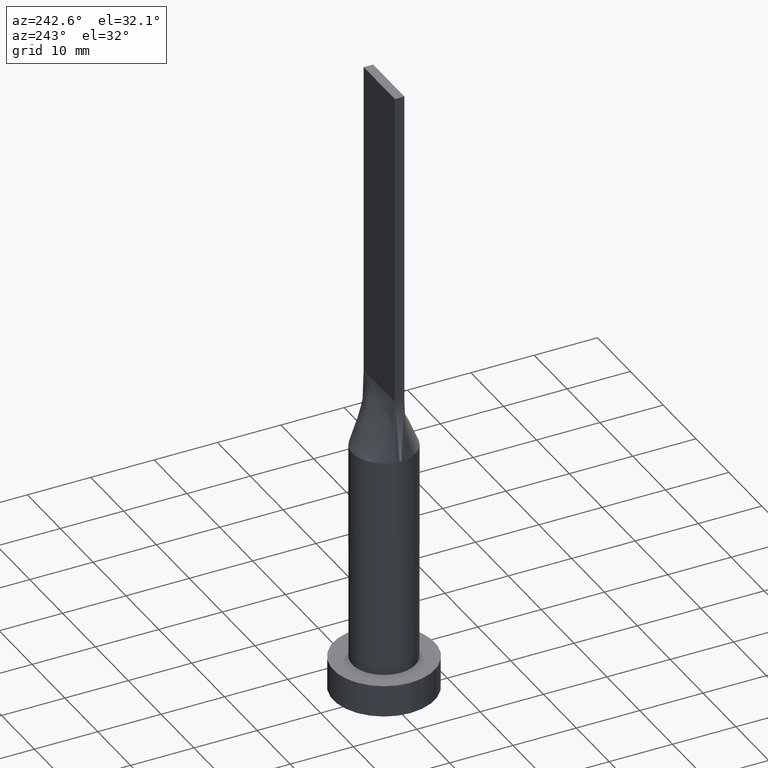
[diagram: clean part render]
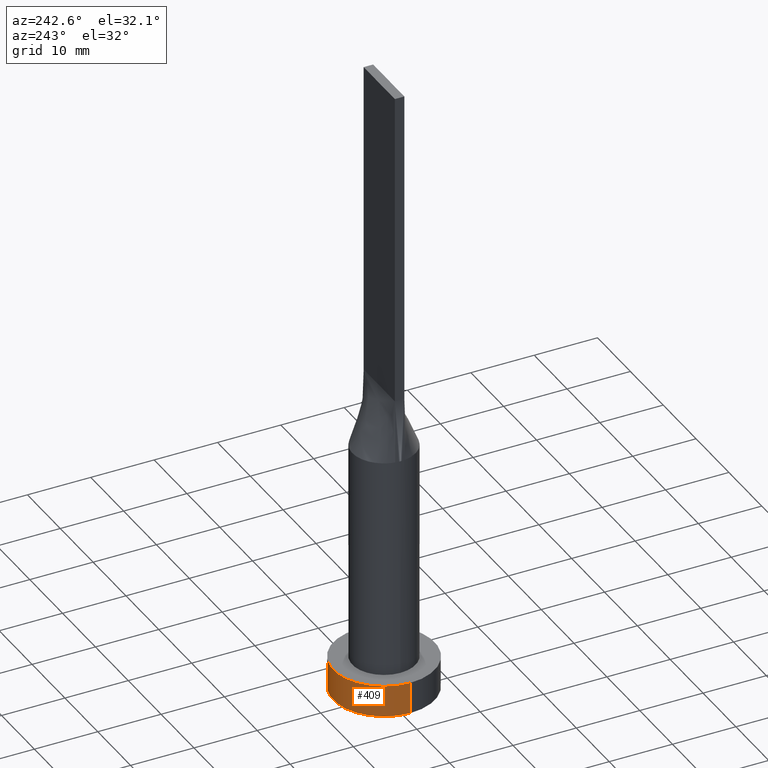
[diagram: same view with one face highlighted and labeled with its STEP entity id]
A machine part, auxiliary view. The second image highlights one B-rep face of the part: STEP entity #409.
In plain terms, the highlighted cylindrical surface (partial cylindrical patch) has radius 8 mm, axis along (-0, -0, -1).
Its self-contained STEP definition (entity closure, byte-faithful):
#17 = EDGE_LOOP ( 'NONE', ( #121, #343, #56, #200 ) ) ;
#29 = DIRECTION ( 'NONE',  ( -0.000000000000000000, -0.000000000000000000, -1.000000000000000000 ) ) ;
#31 = CARTESIAN_POINT ( 'NONE',  ( 0.000000000000000000, 0.000000000000000000, 5.000000000000000000 ) ) ;
#34 = AXIS2_PLACEMENT_3D ( 'NONE', #31, #608, #274 ) ;
#56 = ORIENTED_EDGE ( 'NONE', *, *, #163, .T. ) ;
#66 = EDGE_CURVE ( 'NONE', #107, #441, #601, .T. ) ;
#107 = VERTEX_POINT ( 'NONE', #365 ) ;
#121 = ORIENTED_EDGE ( 'NONE', *, *, #66, .F. ) ;
#131 = CARTESIAN_POINT ( 'NONE',  ( 8.000000000000000000, 9.797174393178825657E-16, 5.000000000000000000 ) ) ;
#136 = DIRECTION ( 'NONE',  ( 1.000000000000000000, 0.000000000000000000, 0.000000000000000000 ) ) ;
#138 = VECTOR ( 'NONE', #29, 1000.000000000000000 ) ;
#155 = DIRECTION ( 'NONE',  ( 0.000000000000000000, 0.000000000000000000, 1.000000000000000000 ) ) ;
#163 = EDGE_CURVE ( 'NONE', #446, #216, #382, .T. ) ;
#200 = ORIENTED_EDGE ( 'NONE', *, *, #605, .F. ) ;
#216 = VERTEX_POINT ( 'NONE', #494 ) ;
#245 = DIRECTION ( 'NONE',  ( -0.000000000000000000, -0.000000000000000000, -1.000000000000000000 ) ) ;
#274 = DIRECTION ( 'NONE',  ( -1.000000000000000000, 0.000000000000000000, 0.000000000000000000 ) ) ;
#276 = CARTESIAN_POINT ( 'NONE',  ( -8.000000000000000000, 0.000000000000000000, 5.000000000000000000 ) ) ;
#331 = AXIS2_PLACEMENT_3D ( 'NONE', #514, #555, #136 ) ;
#343 = ORIENTED_EDGE ( 'NONE', *, *, #471, .T. ) ;
#360 = CYLINDRICAL_SURFACE ( 'NONE', #34, 8.000000000000000000 ) ;
#365 = CARTESIAN_POINT ( 'NONE',  ( 8.000000000000000000, 9.797174393178825657E-16, 5.000000000000000000 ) ) ;
#382 = CIRCLE ( 'NONE', #546, 8.000000000000000000 ) ;
#408 = CARTESIAN_POINT ( 'NONE',  ( 8.000000000000000000, 9.797174393178825657E-16, 0.000000000000000000 ) ) ;
#409 = ADVANCED_FACE ( 'NONE', ( #417 ), #360, .T. ) ;
#417 = FACE_OUTER_BOUND ( 'NONE', #17, .T. ) ;
#441 = VERTEX_POINT ( 'NONE', #276 ) ;
#446 = VERTEX_POINT ( 'NONE', #408 ) ;
#456 = LINE ( 'NONE', #131, #138 ) ;
#468 = CARTESIAN_POINT ( 'NONE',  ( -8.000000000000000000, 0.000000000000000000, 5.000000000000000000 ) ) ;
#471 = EDGE_CURVE ( 'NONE', #107, #446, #456, .T. ) ;
#483 = DIRECTION ( 'NONE',  ( 1.000000000000000000, 0.000000000000000000, 0.000000000000000000 ) ) ;
#494 = CARTESIAN_POINT ( 'NONE',  ( -8.000000000000000000, 0.000000000000000000, 0.000000000000000000 ) ) ;
#514 = CARTESIAN_POINT ( 'NONE',  ( 0.000000000000000000, 0.000000000000000000, 5.000000000000000000 ) ) ;
#546 = AXIS2_PLACEMENT_3D ( 'NONE', #570, #155, #483 ) ;
#555 = DIRECTION ( 'NONE',  ( 0.000000000000000000, 0.000000000000000000, 1.000000000000000000 ) ) ;
#566 = LINE ( 'NONE', #468, #600 ) ;
#570 = CARTESIAN_POINT ( 'NONE',  ( 0.000000000000000000, 0.000000000000000000, 0.000000000000000000 ) ) ;
#600 = VECTOR ( 'NONE', #245, 1000.000000000000000 ) ;
#601 = CIRCLE ( 'NONE', #331, 8.000000000000000000 ) ;
#605 = EDGE_CURVE ( 'NONE', #441, #216, #566, .T. ) ;
#608 = DIRECTION ( 'NONE',  ( -0.000000000000000000, -0.000000000000000000, -1.000000000000000000 ) ) ;